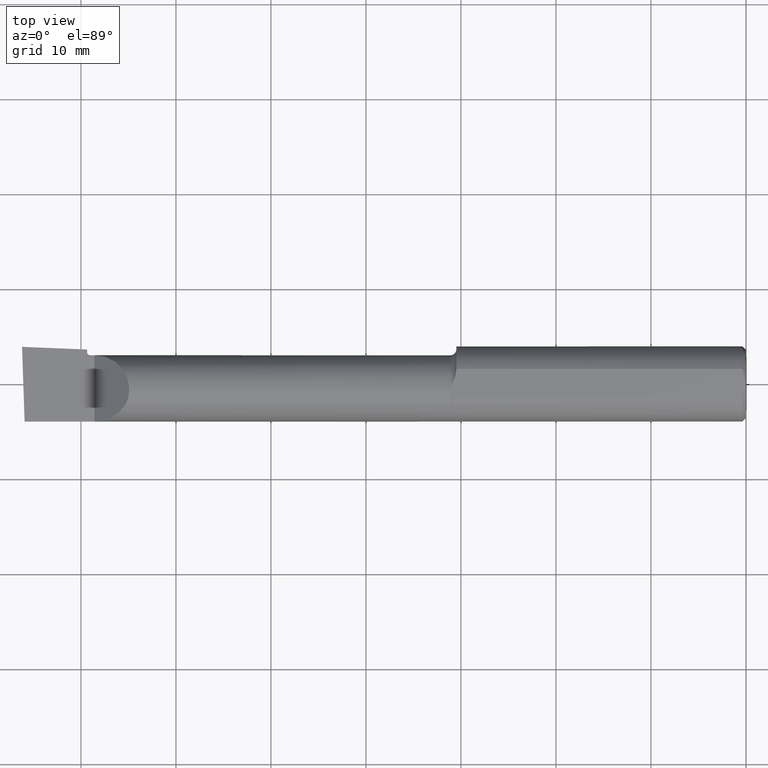
[diagram: clean part render]
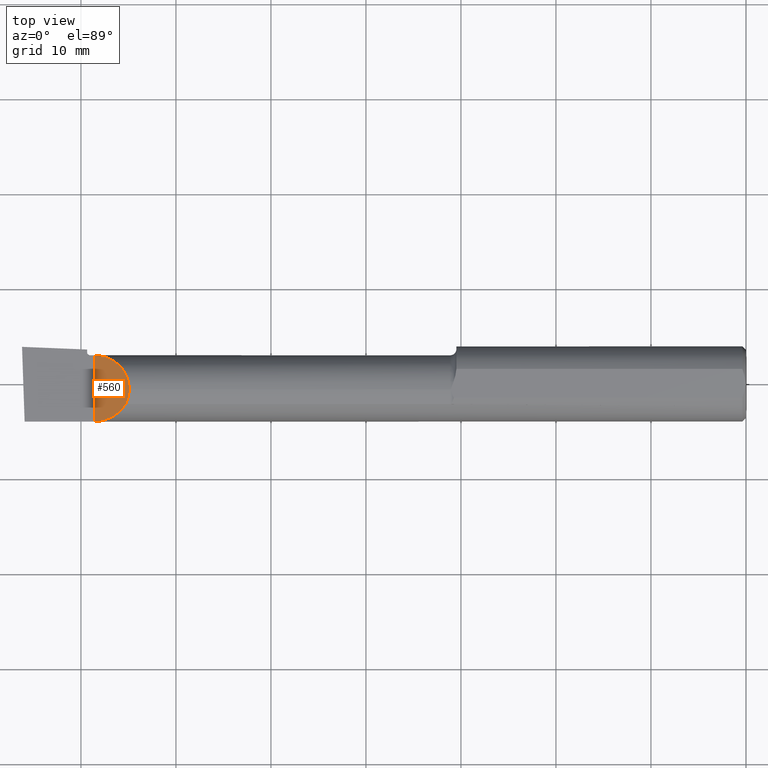
[diagram: same view with one face highlighted and labeled with its STEP entity id]
A machine part, top view. The second image highlights one B-rep face of the part: STEP entity #560.
In plain terms, the highlighted planar face has unit normal (0.7071, 0, -0.7071).
Its self-contained STEP definition (entity closure, byte-faithful):
#2 = ORIENTED_EDGE ( 'NONE', *, *, #357, .F. ) ;
#7 = VERTEX_POINT ( 'NONE', #591 ) ;
#29 = CARTESIAN_POINT ( 'NONE',  ( -2.556100000000000261, 0.05929466837451163874, 0.1439000000000000279 ) ) ;
#50 = DIRECTION ( 'NONE',  ( 0.000000000000000000, 1.000000000000000000, 0.000000000000000000 ) ) ;
#114 = VECTOR ( 'NONE', #50, 39.37007874015748143 ) ;
#126 = CARTESIAN_POINT ( 'NONE',  ( -2.569528853764521337, -0.08570000000000285723, 0.1304711462354783413 ) ) ;
#228 = LINE ( 'NONE', #566, #114 ) ;
#244 = VERTEX_POINT ( 'NONE', #404 ) ;
#247 = FACE_OUTER_BOUND ( 'NONE', #380, .T. ) ;
#265 =( BOUNDED_CURVE ( )  B_SPLINE_CURVE ( 3, ( #597, #482, #29, #401 ),
 .UNSPECIFIED., .F., .T. ) 
 B_SPLINE_CURVE_WITH_KNOTS ( ( 4, 4 ),
 ( 4.712388980384689674, 6.283185307179586232 ),
 .UNSPECIFIED. ) 
 CURVE ( )  GEOMETRIC_REPRESENTATION_ITEM ( )  RATIONAL_B_SPLINE_CURVE ( ( 1.000000000000000000, 0.8047378541243649375, 0.8047378541243649375, 1.000000000000000000 ) ) 
 REPRESENTATION_ITEM ( '' )  );
#271 =( BOUNDED_CURVE ( )  B_SPLINE_CURVE ( 3, ( #415, #355, #367, #126 ),
 .UNSPECIFIED., .F., .T. ) 
 B_SPLINE_CURVE_WITH_KNOTS ( ( 4, 4 ),
 ( 0.000000000000000000, 0.4354524910905817059 ),
 .UNSPECIFIED. ) 
 CURVE ( )  GEOMETRIC_REPRESENTATION_ITEM ( )  RATIONAL_B_SPLINE_CURVE ( ( 1.000000000000000000, 0.9842607512044727613, 0.9842607512044727613, 1.000000000000000000 ) ) 
 REPRESENTATION_ITEM ( '' )  );
#307 = EDGE_CURVE ( 'NONE', #663, #7, #228, .T. ) ;
#315 = CARTESIAN_POINT ( 'NONE',  ( -2.699999999999998401, 0.1560999999999999888, 3.826894855694925850E-18 ) ) ;
#354 = ORIENTED_EDGE ( 'NONE', *, *, #307, .F. ) ;
#355 = CARTESIAN_POINT ( 'NONE',  ( -2.556100000000000261, -0.04605394310600759156, 0.1439000000000000279 ) ) ;
#357 = EDGE_CURVE ( 'NONE', #616, #244, #271, .T. ) ;
#367 = CARTESIAN_POINT ( 'NONE',  ( -2.560647864559971953, -0.06661082633900669570, 0.1393521354400284740 ) ) ;
#380 = EDGE_LOOP ( 'NONE', ( #569, #354, #720, #2 ) ) ;
#401 = CARTESIAN_POINT ( 'NONE',  ( -2.556100000000000261, -0.02500000000000000486, 0.1439000000000000279 ) ) ;
#404 = CARTESIAN_POINT ( 'NONE',  ( -2.569528853764521337, -0.08570000000000285723, 0.1304711462354783413 ) ) ;
#415 = CARTESIAN_POINT ( 'NONE',  ( -2.556100000000000261, -0.02500000000000000486, 0.1439000000000000279 ) ) ;
#422 = DIRECTION ( 'NONE',  ( 0.7071067811865515695, 0.000000000000000000, -0.7071067811865434649 ) ) ;
#427 = DIRECTION ( 'NONE',  ( 0.000000000000000000, 1.000000000000000000, 0.000000000000000000 ) ) ;
#482 = CARTESIAN_POINT ( 'NONE',  ( -2.615705331625488128, 0.1189000000000000751, 0.08429466837451161931 ) ) ;
#522 = CARTESIAN_POINT ( 'NONE',  ( -2.599017382551547684, -0.1305938407426061321, 0.1009826174484517586 ) ) ;
#524 =( BOUNDED_CURVE ( )  B_SPLINE_CURVE ( 3, ( #575, #522, #742, #704 ),
 .UNSPECIFIED., .F., .F. ) 
 B_SPLINE_CURVE_WITH_KNOTS ( ( 4, 4 ),
 ( 0.5811757715714742645, 1.570796326794896558 ),
 .UNSPECIFIED. ) 
 CURVE ( )  GEOMETRIC_REPRESENTATION_ITEM ( )  RATIONAL_B_SPLINE_CURVE ( ( 1.000000000000000000, 0.9200392120920009020, 0.9200392120920009020, 1.000000000000000000 ) ) 
 REPRESENTATION_ITEM ( '' )  );
#541 = EDGE_CURVE ( 'NONE', #7, #616, #265, .T. ) ;
#560 = ADVANCED_FACE ( 'NONE', ( #247 ), #705, .F. ) ;
#566 = CARTESIAN_POINT ( 'NONE',  ( -2.699999999999998401, 0.1560999999999999888, 3.826894855694925850E-18 ) ) ;
#569 = ORIENTED_EDGE ( 'NONE', *, *, #541, .F. ) ;
#575 = CARTESIAN_POINT ( 'NONE',  ( -2.569528853764521337, -0.08570000000000285723, 0.1304711462354783413 ) ) ;
#584 = CARTESIAN_POINT ( 'NONE',  ( -2.556100000000000261, -0.02500000000000000486, 0.1439000000000000279 ) ) ;
#591 = CARTESIAN_POINT ( 'NONE',  ( -2.699999999999998401, 0.1189000000000000057, 3.826894855694925850E-18 ) ) ;
#597 = CARTESIAN_POINT ( 'NONE',  ( -2.699999999999998401, 0.1189000000000000057, 3.826894855694925850E-18 ) ) ;
#616 = VERTEX_POINT ( 'NONE', #584 ) ;
#622 = CARTESIAN_POINT ( 'NONE',  ( -2.699999999999998401, -0.1560999999999999888, 3.826894855694925850E-18 ) ) ;
#646 = EDGE_CURVE ( 'NONE', #244, #663, #524, .T. ) ;
#663 = VERTEX_POINT ( 'NONE', #622 ) ;
#704 = CARTESIAN_POINT ( 'NONE',  ( -2.699999999999998401, -0.1560999999999999888, 3.826894855694925850E-18 ) ) ;
#705 = PLANE ( 'NONE',  #736 ) ;
#720 = ORIENTED_EDGE ( 'NONE', *, *, #646, .F. ) ;
#736 = AXIS2_PLACEMENT_3D ( 'NONE', #315, #422, #427 ) ;
#742 = CARTESIAN_POINT ( 'NONE',  ( -2.646287522244402002, -0.1561000000000000165, 0.05371247775559721827 ) ) ;